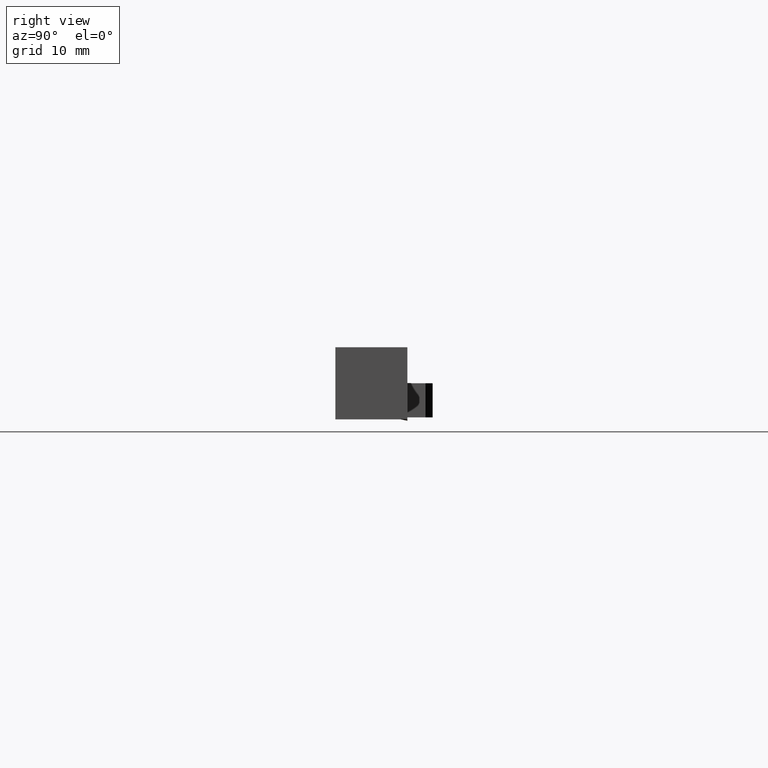
[diagram: clean part render]
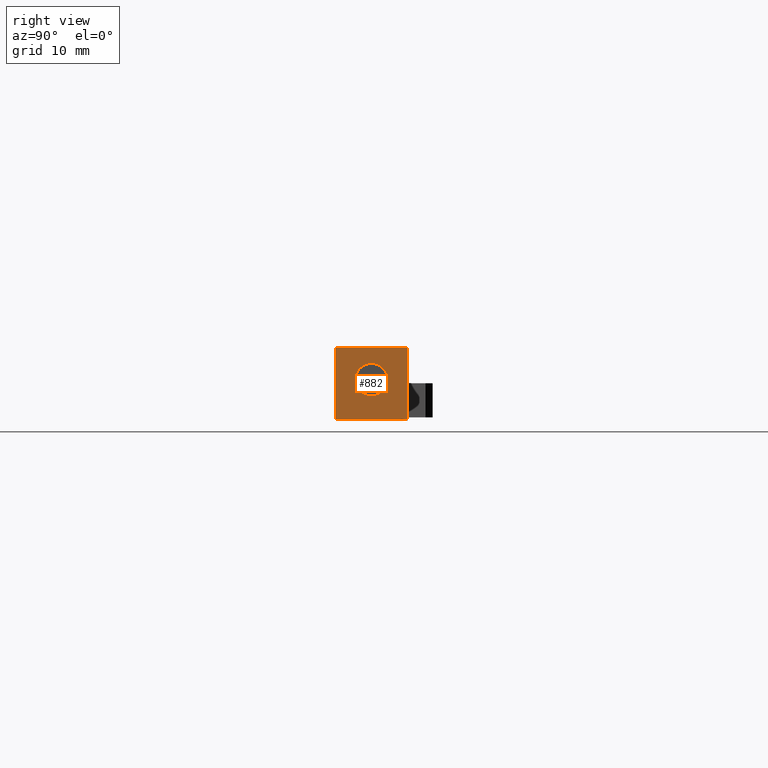
[diagram: same view with one face highlighted and labeled with its STEP entity id]
A machine part, right view. The second image highlights one B-rep face of the part: STEP entity #882.
In plain terms, the highlighted planar face has unit normal (1, 0, -0).
Its self-contained STEP definition (entity closure, byte-faithful):
#36 = DIRECTION ( 'NONE',  ( 0.0000000000000000000, 1.000000000000000000, 0.0000000000000000000 ) ) ;
#40 = DIRECTION ( 'NONE',  ( 1.000000000000000000, 0.0000000000000000000, 0.0000000000000000000 ) ) ;
#178 = PLANE ( 'NONE',  #1922 ) ;
#196 = VERTEX_POINT ( 'NONE', #384 ) ;
#229 = DIRECTION ( 'NONE',  ( 0.0000000000000000000, 0.0000000000000000000, 1.000000000000000000 ) ) ;
#266 = VERTEX_POINT ( 'NONE', #406 ) ;
#384 = CARTESIAN_POINT ( 'NONE',  ( 100.0000000000000000, -10.00000000000000000, -19.99999999999996100 ) ) ;
#402 = CARTESIAN_POINT ( 'NONE',  ( 100.0000000000000000, -5.000000000000000000, -12.24999999999996300 ) ) ;
#406 = CARTESIAN_POINT ( 'NONE',  ( 100.0000000000000000, 0.0000000000000000000, -9.999999999999962700 ) ) ;
#429 = EDGE_CURVE ( 'NONE', #1266, #266, #1450, .T. ) ;
#495 = DIRECTION ( 'NONE',  ( 0.0000000000000000000, 0.0000000000000000000, 1.000000000000000000 ) ) ;
#522 = DIRECTION ( 'NONE',  ( 0.0000000000000000000, 0.0000000000000000000, 1.000000000000000000 ) ) ;
#559 = DIRECTION ( 'NONE',  ( 0.0000000000000000000, 0.0000000000000000000, -1.000000000000000000 ) ) ;
#602 = ORIENTED_EDGE ( 'NONE', *, *, #1155, .F. ) ;
#618 = ORIENTED_EDGE ( 'NONE', *, *, #1122, .F. ) ;
#679 = EDGE_LOOP ( 'NONE', ( #2068, #1422, #618, #1421 ) ) ;
#765 = VECTOR ( 'NONE', #1956, 1000.000000000000000 ) ;
#774 = FACE_BOUND ( 'NONE', #1061, .T. ) ;
#812 = CARTESIAN_POINT ( 'NONE',  ( 100.0000000000000000, 0.0000000000000000000, -19.99999999999996100 ) ) ;
#874 = AXIS2_PLACEMENT_3D ( 'NONE', #992, #40, #1157 ) ;
#877 = FACE_OUTER_BOUND ( 'NONE', #679, .T. ) ;
#882 = ADVANCED_FACE ( 'NONE', ( #774, #877 ), #178, .T. ) ;
#962 = CARTESIAN_POINT ( 'NONE',  ( 100.0000000000000000, -5.000000000000000000, -16.74999999999996100 ) ) ;
#992 = CARTESIAN_POINT ( 'NONE',  ( 100.0000000000000000, -5.000000000000000000, -14.49999999999996100 ) ) ;
#997 = CARTESIAN_POINT ( 'NONE',  ( 100.0000000000000000, -10.00000000000000000, -9.999999999999962700 ) ) ;
#1001 = CARTESIAN_POINT ( 'NONE',  ( 100.0000000000000000, -10.00000000000000000, -19.99999999999996100 ) ) ;
#1027 = VECTOR ( 'NONE', #229, 1000.000000000000000 ) ;
#1057 = CARTESIAN_POINT ( 'NONE',  ( 100.0000000000000000, -5.000000000000000000, -14.49999999999996100 ) ) ;
#1061 = EDGE_LOOP ( 'NONE', ( #602, #1681 ) ) ;
#1070 = VERTEX_POINT ( 'NONE', #962 ) ;
#1122 = EDGE_CURVE ( 'NONE', #196, #1408, #1532, .T. ) ;
#1129 = CARTESIAN_POINT ( 'NONE',  ( 100.0000000000000000, 0.0000000000000000000, -19.99999999999996100 ) ) ;
#1155 = EDGE_CURVE ( 'NONE', #1070, #1784, #1608, .T. ) ;
#1157 = DIRECTION ( 'NONE',  ( 0.0000000000000000000, 0.0000000000000000000, -1.000000000000000000 ) ) ;
#1223 = EDGE_CURVE ( 'NONE', #1784, #1070, #1449, .T. ) ;
#1230 = LINE ( 'NONE', #1942, #1750 ) ;
#1266 = VERTEX_POINT ( 'NONE', #812 ) ;
#1267 = EDGE_CURVE ( 'NONE', #196, #1266, #1230, .T. ) ;
#1349 = AXIS2_PLACEMENT_3D ( 'NONE', #1057, #1857, #559 ) ;
#1408 = VERTEX_POINT ( 'NONE', #1829 ) ;
#1421 = ORIENTED_EDGE ( 'NONE', *, *, #1267, .T. ) ;
#1422 = ORIENTED_EDGE ( 'NONE', *, *, #1976, .F. ) ;
#1449 = CIRCLE ( 'NONE', #874, 2.249999999999998700 ) ;
#1450 = LINE ( 'NONE', #1129, #1027 ) ;
#1532 = LINE ( 'NONE', #1815, #2011 ) ;
#1533 = DIRECTION ( 'NONE',  ( 1.000000000000000000, 0.0000000000000000000, -0.0000000000000000000 ) ) ;
#1608 = CIRCLE ( 'NONE', #1349, 2.249999999999998700 ) ;
#1681 = ORIENTED_EDGE ( 'NONE', *, *, #1223, .F. ) ;
#1750 = VECTOR ( 'NONE', #36, 1000.000000000000000 ) ;
#1784 = VERTEX_POINT ( 'NONE', #402 ) ;
#1815 = CARTESIAN_POINT ( 'NONE',  ( 100.0000000000000000, -10.00000000000000000, -19.99999999999996100 ) ) ;
#1829 = CARTESIAN_POINT ( 'NONE',  ( 100.0000000000000000, -10.00000000000000000, -9.999999999999962700 ) ) ;
#1857 = DIRECTION ( 'NONE',  ( 1.000000000000000000, 0.0000000000000000000, 0.0000000000000000000 ) ) ;
#1922 = AXIS2_PLACEMENT_3D ( 'NONE', #1001, #1533, #495 ) ;
#1942 = CARTESIAN_POINT ( 'NONE',  ( 100.0000000000000000, -10.00000000000000000, -19.99999999999996100 ) ) ;
#1956 = DIRECTION ( 'NONE',  ( 0.0000000000000000000, 1.000000000000000000, 0.0000000000000000000 ) ) ;
#1974 = LINE ( 'NONE', #997, #765 ) ;
#1976 = EDGE_CURVE ( 'NONE', #1408, #266, #1974, .T. ) ;
#2011 = VECTOR ( 'NONE', #522, 1000.000000000000000 ) ;
#2068 = ORIENTED_EDGE ( 'NONE', *, *, #429, .T. ) ;